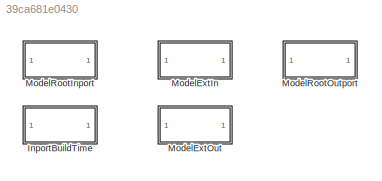
MODEL slx_39ca681e0430
KIND library
CONFIG AbsTol = auto
CONFIG EnableMultiTasking = off
CONFIG FixedStep = auto
CONFIG MaxStep = auto
CONFIG MinStep = auto
CONFIG RelTol = 1e-3
CONFIG SampleTimeConstraint = Unconstrained
CONFIG SolverName = VariableStepAuto
CONFIG StartTime = 0.0
CONFIG StopTime = 10.0
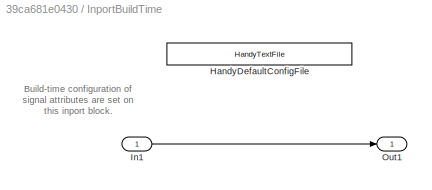
BLOCK [SubSystem] InportBuildTime
BLOCK [Reference] InportBuildTime/HandyDefaultConfigFile  REF=HandyTextFile/HandyTextFile
  SourceBlock = HandyTextFile/HandyTextFile
  SourceProductName = Bose Talaria
  SourceType = Talaria Handy Text File
BLOCK [Inport] InportBuildTime/In1
  OutDataTypeStr = Config.DataType
  PortDimensions = Config.Dimensions
  SampleTime = Config.SampleTime
BLOCK [Outport] InportBuildTime/Out1
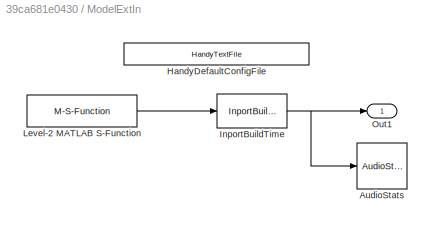
BLOCK [SubSystem] ModelExtIn
BLOCK [Reference] ModelExtIn/AudioStats  REF=AudioStats/AudioStats
  SourceBlock = AudioStats/AudioStats
  SourceProductName = Bose Talaria
  SourceType = Talaria Audio Statistics
BLOCK [Reference] ModelExtIn/HandyDefaultConfigFile  REF=HandyTextFile/HandyTextFile
  SourceBlock = HandyTextFile/HandyTextFile
  SourceProductName = Bose Talaria
  SourceType = Talaria Handy Text File
BLOCK [Reference] ModelExtIn/InportBuildTime  REF=$bdroot/InportBuildTime
  SourceBlock = $bdroot/InportBuildTime
  SourceType = Talaria Build-Time Configured Inport
BLOCK [M-S-Function] ModelExtIn/Level-2 MATLAB S-Function
  FunctionName = ExtPortSFunc
  Parameters = Config.BufferName,1
BLOCK [Outport] ModelExtIn/Out1
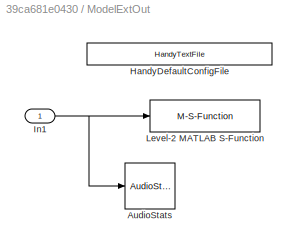
BLOCK [SubSystem] ModelExtOut
BLOCK [Reference] ModelExtOut/AudioStats  REF=AudioStats/AudioStats
  SourceBlock = AudioStats/AudioStats
  SourceProductName = Bose Talaria
  SourceType = Talaria Audio Statistics
BLOCK [Reference] ModelExtOut/HandyDefaultConfigFile  REF=HandyTextFile/HandyTextFile
  SourceBlock = HandyTextFile/HandyTextFile
  SourceProductName = Bose Talaria
  SourceType = Talaria Handy Text File
BLOCK [Inport] ModelExtOut/In1
BLOCK [M-S-Function] ModelExtOut/Level-2 MATLAB S-Function
  FunctionName = ExtPortSFunc
  Parameters = BufferName,0
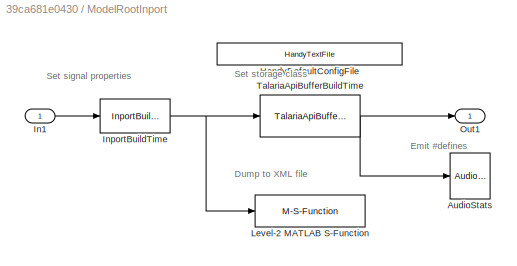
BLOCK [SubSystem] ModelRootInport
BLOCK [Reference] ModelRootInport/AudioStats  REF=AudioStats/AudioStats
  SourceBlock = AudioStats/AudioStats
  SourceProductName = Bose Talaria
  SourceType = Talaria Audio Statistics
BLOCK [Reference] ModelRootInport/HandyDefaultConfigFile  REF=HandyTextFile/HandyTextFile
  SourceBlock = HandyTextFile/HandyTextFile
  SourceProductName = Bose Talaria
  SourceType = Talaria Handy Text File
BLOCK [Inport] ModelRootInport/In1
BLOCK [Reference] ModelRootInport/InportBuildTime  REF=$bdroot/InportBuildTime
  SourceBlock = $bdroot/InportBuildTime
  SourceType = Talaria Build-Time Configured Inport
BLOCK [M-S-Function] ModelRootInport/Level-2 MATLAB S-Function
  FunctionName = ModelSyncApiSFunc
  Parameters = Config.BufferName,1,char(Config.AccessType)
BLOCK [Outport] ModelRootInport/Out1
BLOCK [Reference] ModelRootInport/TalariaApiBufferBuildTime  REF=TalariaApiBuffer/TalariaApiBufferBuildTime
  SourceBlock = TalariaApiBuffer/TalariaApiBufferBuildTime
  SourceProductName = Bose Talaria
  SourceType = Talaria API Buffer
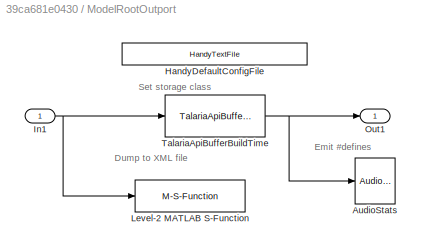
BLOCK [SubSystem] ModelRootOutport
BLOCK [Reference] ModelRootOutport/AudioStats  REF=AudioStats/AudioStats
  SourceBlock = AudioStats/AudioStats
  SourceProductName = Bose Talaria
  SourceType = Talaria Audio Statistics
BLOCK [Reference] ModelRootOutport/HandyDefaultConfigFile  REF=HandyTextFile/HandyTextFile
  SourceBlock = HandyTextFile/HandyTextFile
  SourceProductName = Bose Talaria
  SourceType = Talaria Handy Text File
BLOCK [Inport] ModelRootOutport/In1
BLOCK [M-S-Function] ModelRootOutport/Level-2 MATLAB S-Function
  FunctionName = ModelSyncApiSFunc
  Parameters = Config.BufferName,0,char(Config.AccessType)
BLOCK [Outport] ModelRootOutport/Out1
BLOCK [Reference] ModelRootOutport/TalariaApiBufferBuildTime  REF=TalariaApiBuffer/TalariaApiBufferBuildTime
  SourceBlock = TalariaApiBuffer/TalariaApiBufferBuildTime
  SourceProductName = Bose Talaria
  SourceType = Talaria API Buffer
ANNOTATION InportBuildTime: Build-time configuration of signal attributes are set on this inport block.
ANNOTATION ModelRootInport: Set signal properties
ANNOTATION ModelRootInport: Dump to XML file
ANNOTATION ModelRootInport: Emit #defines
ANNOTATION ModelRootInport: Set storage class
ANNOTATION ModelRootOutport: Dump to XML file
ANNOTATION ModelRootOutport: Emit #defines
ANNOTATION ModelRootOutport: Set storage class
LINE InportBuildTime/In1:1 -> InportBuildTime/Out1:1
NET ModelExtIn/InportBuildTime:1 -> ModelExtIn/AudioStats:1, ModelExtIn/Out1:1
LINE ModelExtIn/Level-2 MATLAB S-Function:1 -> ModelExtIn/InportBuildTime:1
NET ModelExtOut/In1:1 -> ModelExtOut/AudioStats:1, ModelExtOut/Level-2 MATLAB S-Function:1
LINE ModelRootInport/In1:1 -> ModelRootInport/InportBuildTime:1
NET ModelRootInport/InportBuildTime:1 -> ModelRootInport/Level-2 MATLAB S-Function:1, ModelRootInport/TalariaApiBufferBuildTime:1
NET ModelRootInport/TalariaApiBufferBuildTime:1 -> ModelRootInport/AudioStats:1, ModelRootInport/Out1:1
NET ModelRootOutport/In1:1 -> ModelRootOutport/Level-2 MATLAB S-Function:1, ModelRootOutport/TalariaApiBufferBuildTime:1
NET ModelRootOutport/TalariaApiBufferBuildTime:1 -> ModelRootOutport/AudioStats:1, ModelRootOutport/Out1:1
note: NET lines group one-source signal fan-out (src -> all destinations, sorted); 1:1 wires keep LINE
